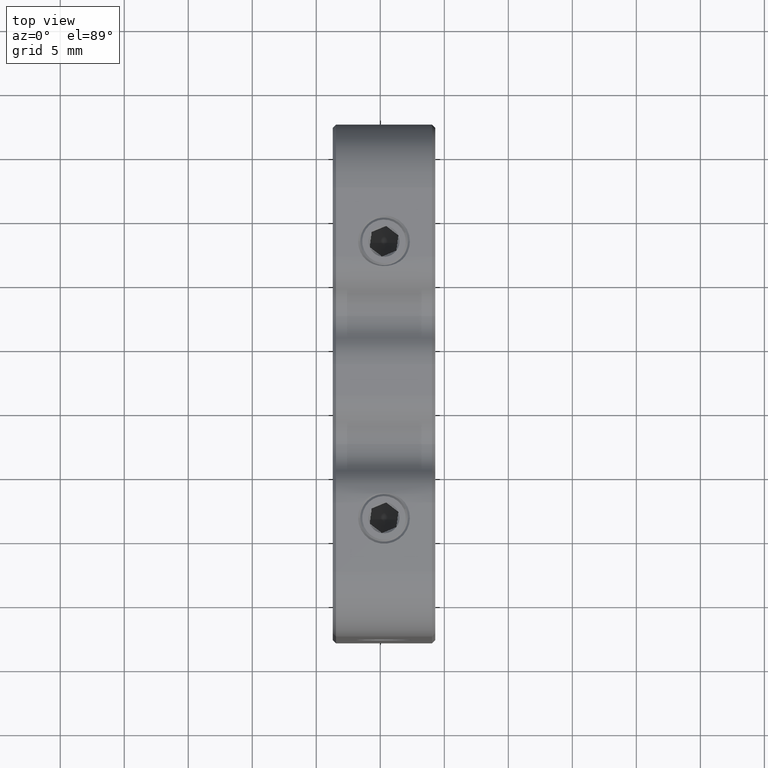
[diagram: clean part render]
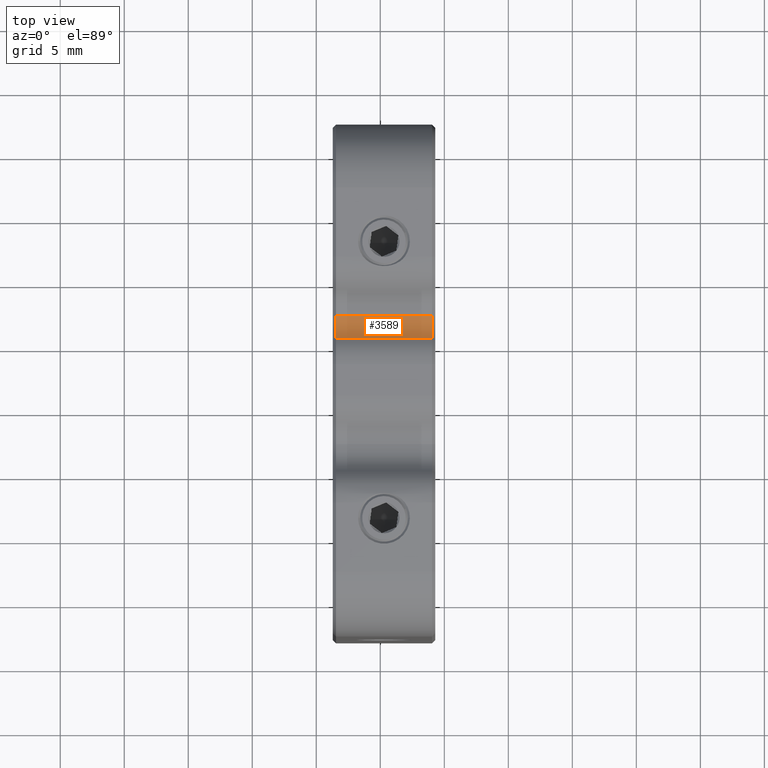
[diagram: same view with one face highlighted and labeled with its STEP entity id]
A machine part, top view. The second image highlights one B-rep face of the part: STEP entity #3589.
In plain terms, the highlighted cylindrical surface (edge-blend (fillet) strip) has radius 2.5 mm, axis along (1, -0, -0).
Its self-contained STEP definition (entity closure, byte-faithful):
#5 = CYLINDRICAL_SURFACE ( 'NONE', #8607, 2.500000000000002220 ) ;
#746 = LINE ( 'NONE', #8797, #6016 ) ;
#760 = CARTESIAN_POINT ( 'NONE',  ( -10.95960063692994879, 7.109301223409107529, 57.50000000000000711 ) ) ;
#1501 = CARTESIAN_POINT ( 'NONE',  ( -18.45960063692994879, 5.393429760847570087, 58.18181818181819409 ) ) ;
#1636 = EDGE_LOOP ( 'NONE', ( #2790, #1681, #9134, #7392 ) ) ;
#1681 = ORIENTED_EDGE ( 'NONE', *, *, #3794, .T. ) ;
#1912 = VERTEX_POINT ( 'NONE', #6992 ) ;
#1993 = DIRECTION ( 'NONE',  ( 1.000000000000000000, -0.000000000000000000, -0.000000000000000000 ) ) ;
#2463 = VERTEX_POINT ( 'NONE', #760 ) ;
#2567 = VECTOR ( 'NONE', #1993, 1000.000000000000000 ) ;
#2790 = ORIENTED_EDGE ( 'NONE', *, *, #7006, .F. ) ;
#3095 = CARTESIAN_POINT ( 'NONE',  ( -18.70960063692994879, 7.109301223409107529, 60.00000000000001421 ) ) ;
#3209 = CARTESIAN_POINT ( 'NONE',  ( -18.70960063692994879, 7.109301223409107529, 57.50000000000000711 ) ) ;
#3227 = DIRECTION ( 'NONE',  ( 1.000000000000000000, 0.000000000000000000, 0.000000000000000000 ) ) ;
#3279 = CIRCLE ( 'NONE', #4128, 2.500000000000002220 ) ;
#3554 = DIRECTION ( 'NONE',  ( -1.000000000000000000, -0.000000000000000000, -0.000000000000000000 ) ) ;
#3589 = ADVANCED_FACE ( 'NONE', ( #8976 ), #5, .F. ) ;
#3794 = EDGE_CURVE ( 'NONE', #4799, #7072, #3279, .T. ) ;
#3824 = DIRECTION ( 'NONE',  ( 1.000000000000000000, -0.000000000000000000, -0.000000000000000000 ) ) ;
#3914 = DIRECTION ( 'NONE',  ( 1.000000000000000000, -0.000000000000000000, -0.000000000000000000 ) ) ;
#4128 = AXIS2_PLACEMENT_3D ( 'NONE', #8434, #3554, #9135 ) ;
#4517 = DIRECTION ( 'NONE',  ( 0.000000000000000000, 0.000000000000000000, -1.000000000000000000 ) ) ;
#4710 = EDGE_CURVE ( 'NONE', #1912, #2463, #6370, .T. ) ;
#4799 = VERTEX_POINT ( 'NONE', #9073 ) ;
#6016 = VECTOR ( 'NONE', #3914, 1000.000000000000000 ) ;
#6069 = CARTESIAN_POINT ( 'NONE',  ( -10.95960063692994879, 7.109301223409107529, 60.00000000000001421 ) ) ;
#6370 = CIRCLE ( 'NONE', #8851, 2.500000000000002220 ) ;
#6601 = LINE ( 'NONE', #3209, #2567 ) ;
#6806 = DIRECTION ( 'NONE',  ( 0.000000000000000000, 0.000000000000000000, -1.000000000000000000 ) ) ;
#6992 = CARTESIAN_POINT ( 'NONE',  ( -10.95960063692994879, 5.393429760847570087, 58.18181818181819409 ) ) ;
#7006 = EDGE_CURVE ( 'NONE', #4799, #2463, #6601, .T. ) ;
#7072 = VERTEX_POINT ( 'NONE', #1501 ) ;
#7392 = ORIENTED_EDGE ( 'NONE', *, *, #4710, .T. ) ;
#8084 = EDGE_CURVE ( 'NONE', #7072, #1912, #746, .T. ) ;
#8434 = CARTESIAN_POINT ( 'NONE',  ( -18.45960063692994879, 7.109301223409107529, 60.00000000000001421 ) ) ;
#8607 = AXIS2_PLACEMENT_3D ( 'NONE', #3095, #3824, #4517 ) ;
#8797 = CARTESIAN_POINT ( 'NONE',  ( -18.70960063692994879, 5.393429760847570087, 58.18181818181819409 ) ) ;
#8851 = AXIS2_PLACEMENT_3D ( 'NONE', #6069, #3227, #6806 ) ;
#8976 = FACE_OUTER_BOUND ( 'NONE', #1636, .T. ) ;
#9073 = CARTESIAN_POINT ( 'NONE',  ( -18.45960063692994879, 7.109301223409107529, 57.50000000000000711 ) ) ;
#9134 = ORIENTED_EDGE ( 'NONE', *, *, #8084, .T. ) ;
#9135 = DIRECTION ( 'NONE',  ( 0.000000000000000000, 0.000000000000000000, -1.000000000000000000 ) ) ;